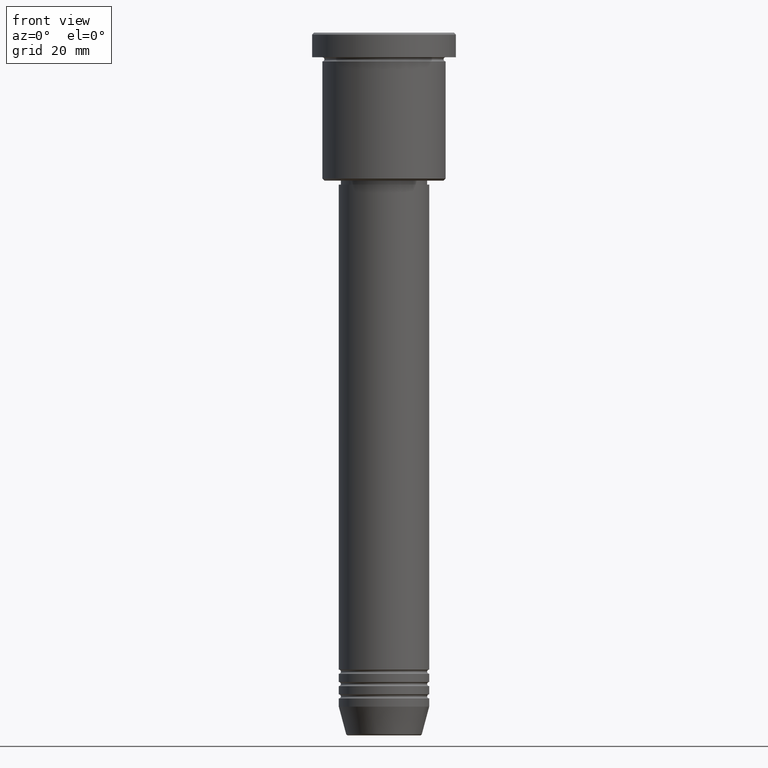
[diagram: clean part render]
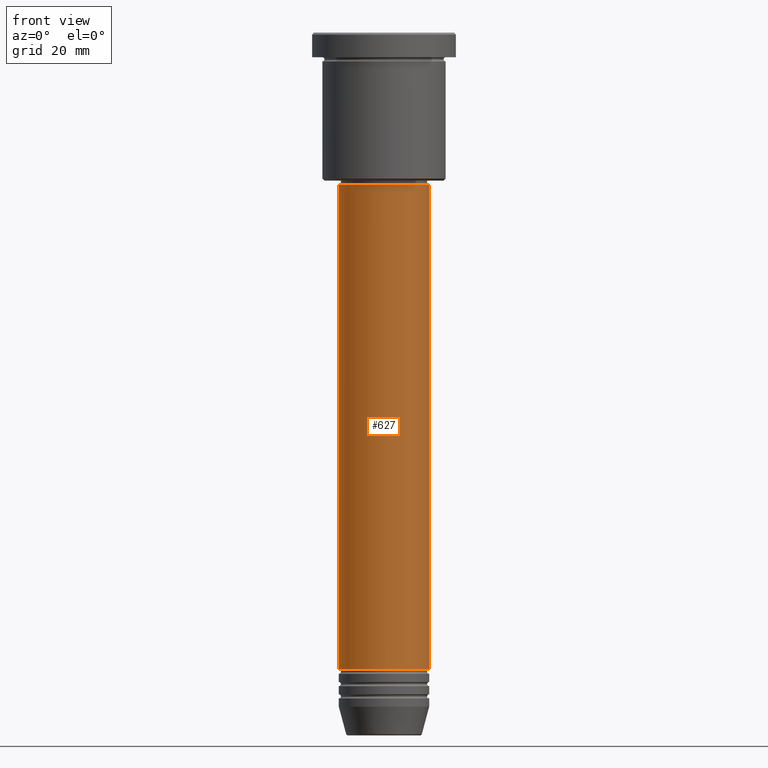
[diagram: same view with one face highlighted and labeled with its STEP entity id]
A machine part, front view. The second image highlights one B-rep face of the part: STEP entity #627.
In plain terms, the highlighted cylindrical surface (partial cylindrical patch) has radius 11 mm, axis along (-0, -0, 1).
Its self-contained STEP definition (entity closure, byte-faithful):
#34 = DIRECTION ( 'NONE',  ( -0.000000000000000000, -0.000000000000000000, 1.000000000000000000 ) ) ;
#68 = EDGE_CURVE ( 'NONE', #696, #75, #1106, .T. ) ;
#75 = VERTEX_POINT ( 'NONE', #109 ) ;
#89 = CARTESIAN_POINT ( 'NONE',  ( 0.000000000000000000, 0.000000000000000000, -37.00000000000000000 ) ) ;
#109 = CARTESIAN_POINT ( 'NONE',  ( 11.00000000000000000, 0.000000000000000000, -37.00000000000000000 ) ) ;
#204 = CARTESIAN_POINT ( 'NONE',  ( 0.000000000000000000, 0.000000000000000000, 0.000000000000000000 ) ) ;
#225 = AXIS2_PLACEMENT_3D ( 'NONE', #204, #34, #852 ) ;
#253 = VERTEX_POINT ( 'NONE', #760 ) ;
#259 = CARTESIAN_POINT ( 'NONE',  ( 0.000000000000000000, 0.000000000000000000, -154.9999999999999716 ) ) ;
#296 = CARTESIAN_POINT ( 'NONE',  ( 11.00000000000000000, 0.000000000000000000, 0.000000000000000000 ) ) ;
#302 = CIRCLE ( 'NONE', #774, 11.00000000000000000 ) ;
#327 = ORIENTED_EDGE ( 'NONE', *, *, #499, .F. ) ;
#444 = EDGE_CURVE ( 'NONE', #253, #75, #302, .T. ) ;
#477 = VECTOR ( 'NONE', #580, 1000.000000000000000 ) ;
#499 = EDGE_CURVE ( 'NONE', #721, #253, #570, .T. ) ;
#509 = EDGE_CURVE ( 'NONE', #721, #696, #716, .T. ) ;
#550 = EDGE_LOOP ( 'NONE', ( #327, #998, #1152, #965 ) ) ;
#551 = CARTESIAN_POINT ( 'NONE',  ( -11.00000000000000000, 1.347111479062088405E-15, -154.9999999999999716 ) ) ;
#559 = VECTOR ( 'NONE', #742, 1000.000000000000000 ) ;
#570 = LINE ( 'NONE', #926, #559 ) ;
#580 = DIRECTION ( 'NONE',  ( -0.000000000000000000, -0.000000000000000000, 1.000000000000000000 ) ) ;
#627 = ADVANCED_FACE ( 'NONE', ( #1037 ), #680, .T. ) ;
#680 = CYLINDRICAL_SURFACE ( 'NONE', #225, 11.00000000000000000 ) ;
#692 = CARTESIAN_POINT ( 'NONE',  ( 11.00000000000000000, 0.000000000000000000, -154.9999999999999716 ) ) ;
#696 = VERTEX_POINT ( 'NONE', #692 ) ;
#716 = CIRCLE ( 'NONE', #955, 11.00000000000000000 ) ;
#721 = VERTEX_POINT ( 'NONE', #551 ) ;
#735 = DIRECTION ( 'NONE',  ( -0.000000000000000000, -0.000000000000000000, 1.000000000000000000 ) ) ;
#742 = DIRECTION ( 'NONE',  ( -0.000000000000000000, -0.000000000000000000, 1.000000000000000000 ) ) ;
#760 = CARTESIAN_POINT ( 'NONE',  ( -11.00000000000000000, 1.347111479062088405E-15, -37.00000000000000000 ) ) ;
#774 = AXIS2_PLACEMENT_3D ( 'NONE', #89, #1091, #920 ) ;
#852 = DIRECTION ( 'NONE',  ( 1.000000000000000000, 0.000000000000000000, 0.000000000000000000 ) ) ;
#900 = DIRECTION ( 'NONE',  ( 1.000000000000000000, 0.000000000000000000, 0.000000000000000000 ) ) ;
#920 = DIRECTION ( 'NONE',  ( 1.000000000000000000, 0.000000000000000000, 0.000000000000000000 ) ) ;
#926 = CARTESIAN_POINT ( 'NONE',  ( -11.00000000000000000, 1.347111479062088405E-15, 0.000000000000000000 ) ) ;
#955 = AXIS2_PLACEMENT_3D ( 'NONE', #259, #735, #900 ) ;
#965 = ORIENTED_EDGE ( 'NONE', *, *, #444, .F. ) ;
#998 = ORIENTED_EDGE ( 'NONE', *, *, #509, .T. ) ;
#1037 = FACE_OUTER_BOUND ( 'NONE', #550, .T. ) ;
#1091 = DIRECTION ( 'NONE',  ( -0.000000000000000000, -0.000000000000000000, 1.000000000000000000 ) ) ;
#1106 = LINE ( 'NONE', #296, #477 ) ;
#1152 = ORIENTED_EDGE ( 'NONE', *, *, #68, .T. ) ;